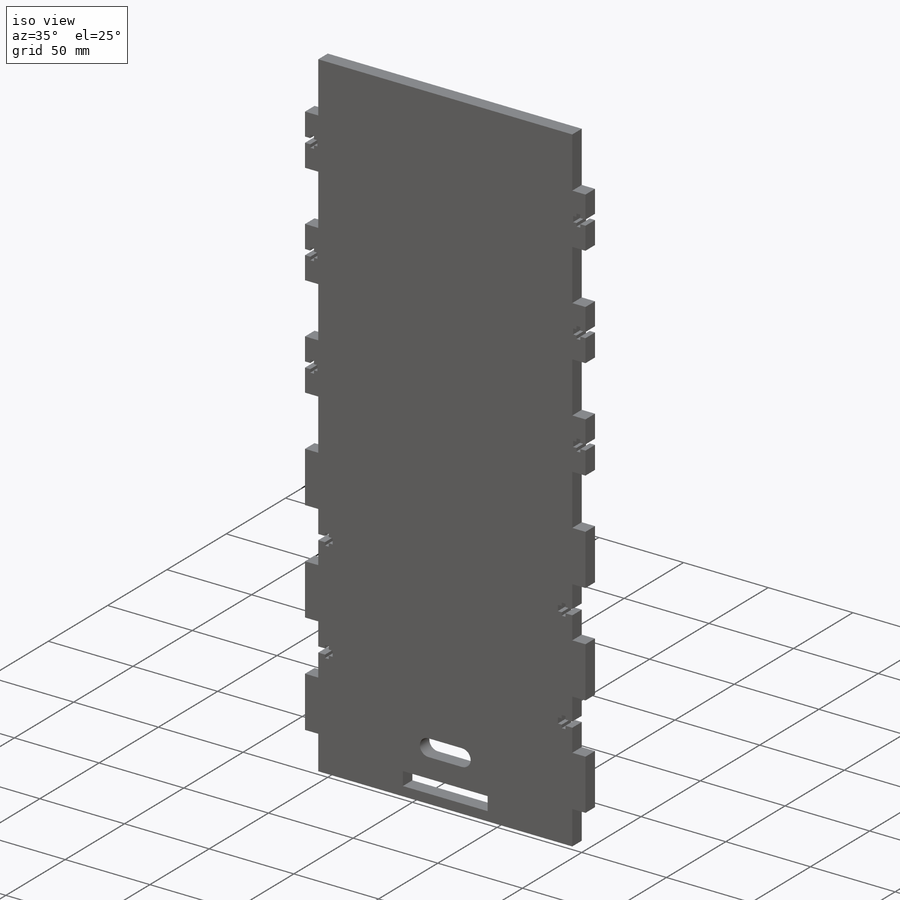
[diagram: iso view]
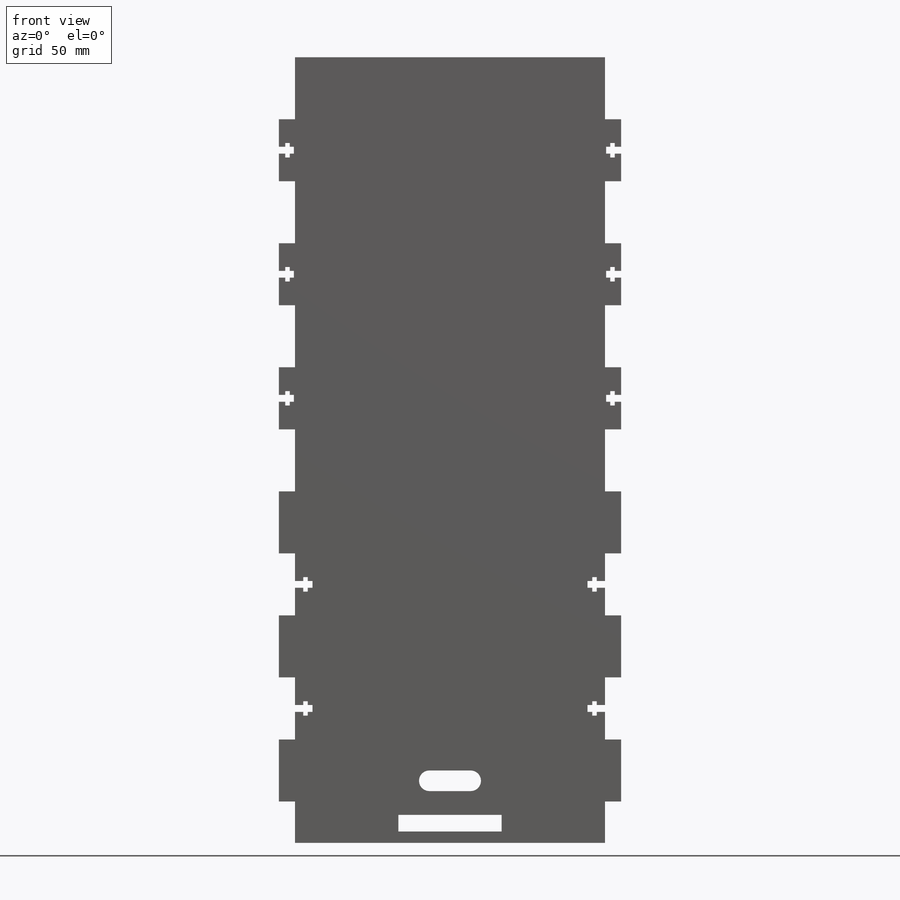
[diagram: front view]
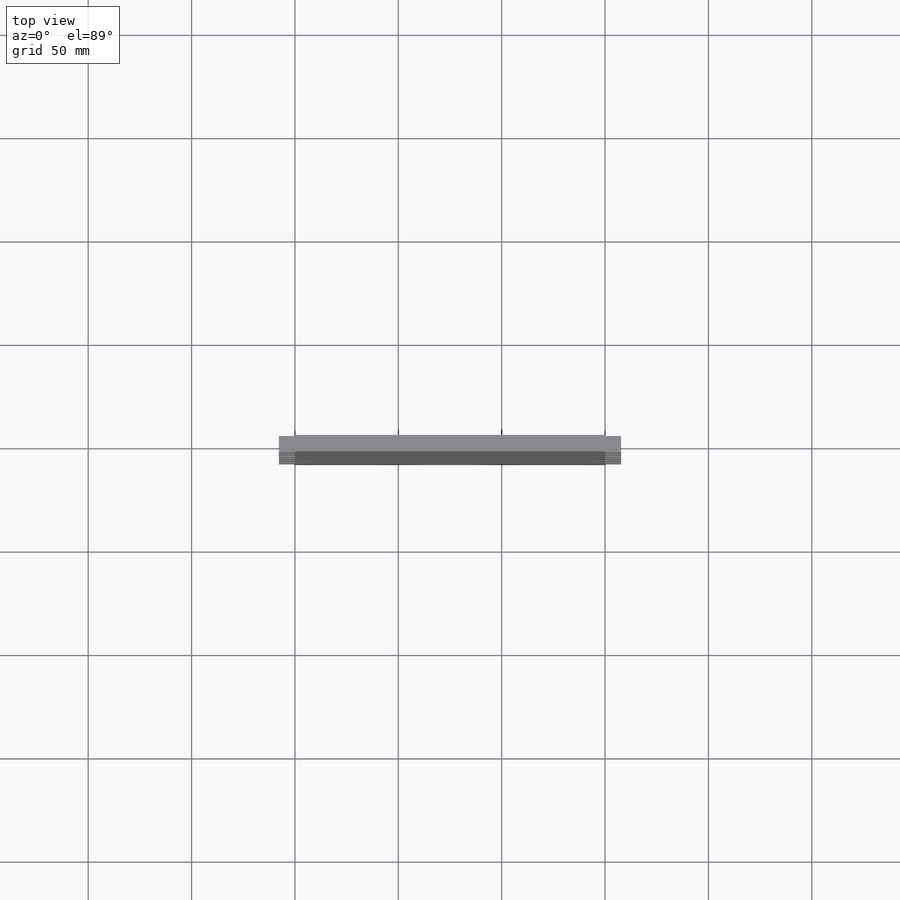
[diagram: top view]
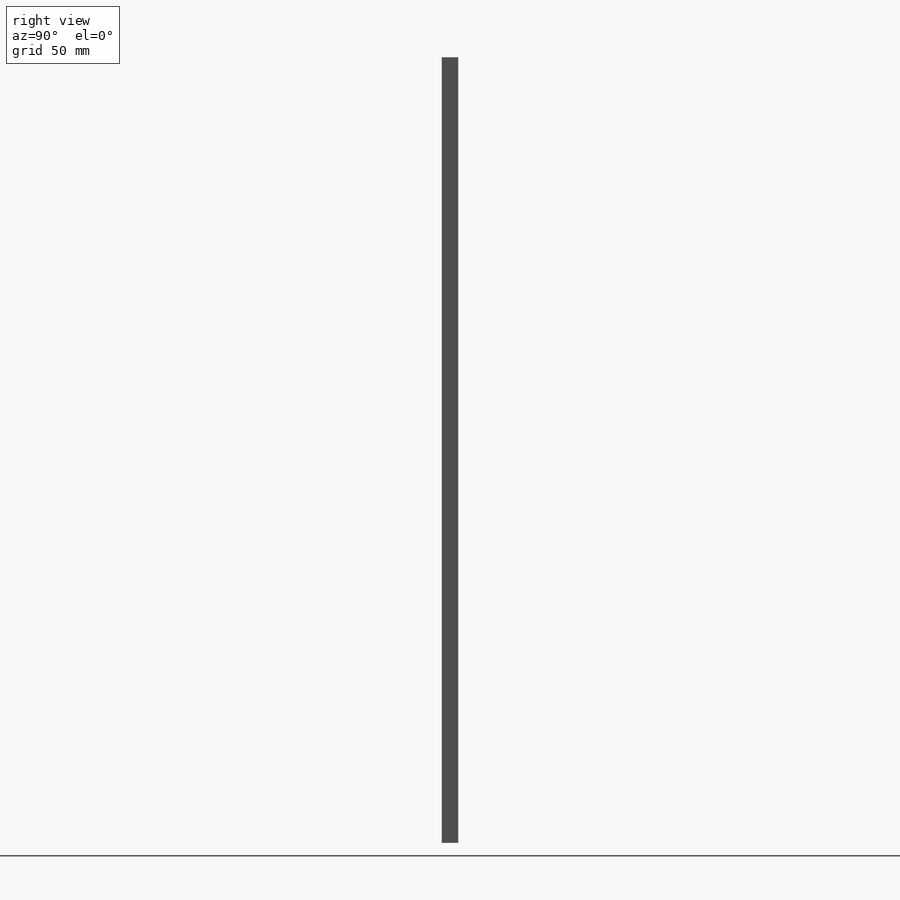
[diagram: right view]
SOLIDWORKS PART (.sldprt)
format: sldprt  version: not decoded by parser v0  size: 415,744 bytes
history: native  units: mm
features: sketch x3, extrude x2, material x1, cut_extrude x1 (+16 scaffold rows collapsed)
feature tree (23):
  scaffold x16  (default folders/planes/origin — collapsed)
  material  "Acrylic (Medium-high impact)"
  sketch  "Sketch1"  dims[D1=150.0mm D2=380.0mm D3=40.0mm D4=5.0mm]
  extrude  "Boss-Extrude1"  Depth=8mm
  sketch  "Sketch2"  dims[D1=30.0mm D2=7.8mm D3=30.0mm D4=6.0]
  extrude  "Boss-Extrude2"  Depth=8mm
  sketch  "Sketch3"  dims[c1.D2=5.0mm c1.D1=20.0mm c1.D3=15.0mm c1.D4=3.3mm c1.D5=7.0mm c1.D6=2.2mm c1.D7=2.0mm c1.D8=4.0mm c1.D9=2.2mm c1.D10=2.3mm c1.D11=3.3mm c1.D12=7.0mm c2.D3=25.0mm c2.D14=0.5mm c2.D15=3.1mm c2.D11=3.3mm c2.D12=7.0mm c2.D13=3.0]
  cut_extrude  "Cut-Extrude1"  [1 undecoded]
decode coverage: 5 of 6 modeling features carry decoded parameters
note: 1 parameter value undecoded
note: suppression state not decoded; provenance and decode notes live in map.json
